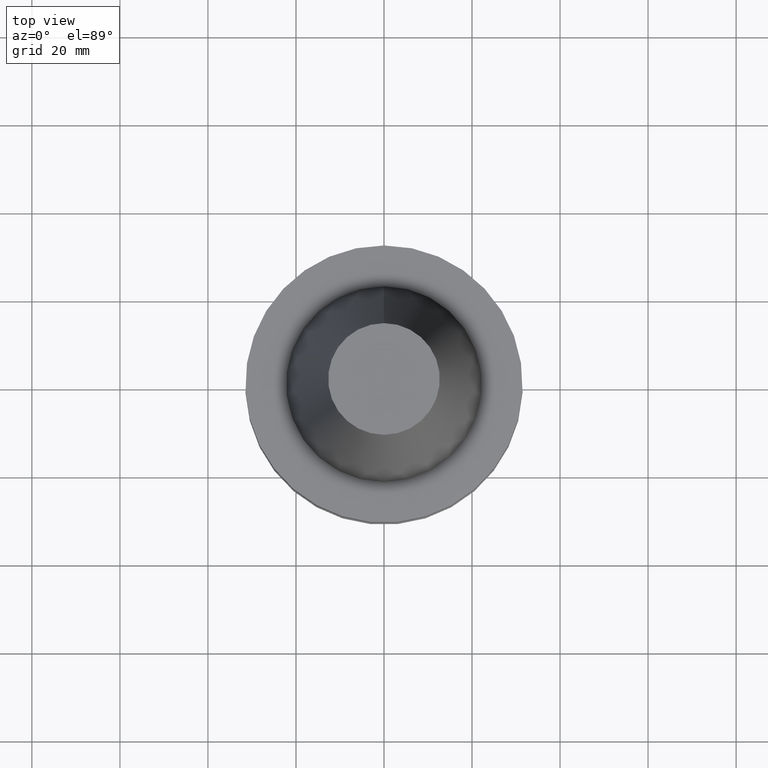
[diagram: clean part render]
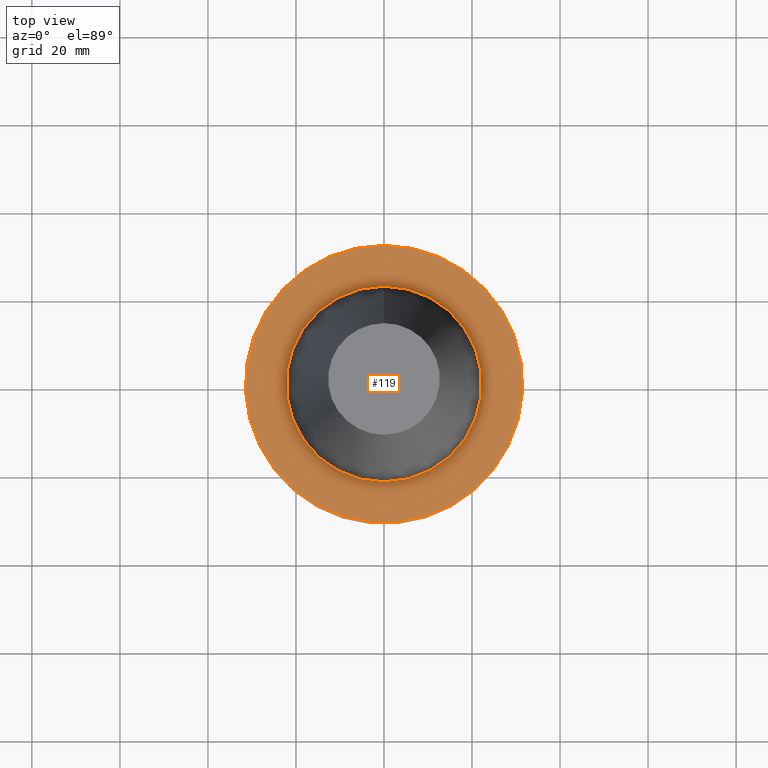
[diagram: same view with one face highlighted and labeled with its STEP entity id]
A machine part, top view. The second image highlights one B-rep face of the part: STEP entity #119.
In plain terms, the highlighted planar face has unit normal (-0, -0, 1).
Its self-contained STEP definition (entity closure, byte-faithful):
#75=EDGE_CURVE('Unnamed[1]',#176,#176,#177,.T.);
#79=EDGE_CURVE('Unnamed[1]',#182,#182,#183,.T.);
#119=ADVANCED_FACE('Unnamed[1]',(#242,#243),#244,.T.);
#176=VERTEX_POINT('',#302);
#177=CIRCLE('',#303,31.4999999999996);
#182=VERTEX_POINT('',#310);
#183=CIRCLE('',#311,22.225);
#242=FACE_OUTER_BOUND('',#384,.T.);
#243=FACE_BOUND('',#385,.T.);
#244=PLANE('',#386);
#302=CARTESIAN_POINT('',(6.12323399573568E-017,31.4999999999997,-0.999999999999825));
#303=AXIS2_PLACEMENT_3D('',#434,#435,#436);
#310=CARTESIAN_POINT('',(6.12323399573604E-017,22.2250000000001,-0.999999999999884));
#311=AXIS2_PLACEMENT_3D('',#440,#441,#442);
#384=EDGE_LOOP('',(#506));
#385=EDGE_LOOP('',(#507));
#386=AXIS2_PLACEMENT_3D('',#508,#509,#510);
#434=CARTESIAN_POINT('',(6.12323399573563E-017,4.53302750006958E-014,-0.999999999999815));
#435=DIRECTION('',(6.12323399573677E-017,-4.72374929569225E-016,-1.0));
#436=DIRECTION('',(2.40974695439514E-032,1.0,-4.72374929569225E-016));
#440=CARTESIAN_POINT('',(6.12323399573598E-017,4.53302750006958E-014,-0.999999999999872));
#441=DIRECTION('',(6.12323399573677E-017,-4.72374929569225E-016,-1.0));
#442=DIRECTION('',(2.40974695439514E-032,1.0,-4.72374929569225E-016));
#506=ORIENTED_EDGE('',*,*,#75,.F.);
#507=ORIENTED_EDGE('',*,*,#79,.T.);
#508=CARTESIAN_POINT('',(6.12323399573586E-017,26.8624999999999,-0.999999999999855));
#509=DIRECTION('',(-6.12323399573677E-017,-6.28704535573121E-015,1.0));
#510=DIRECTION('',(3.89797651280292E-031,-1.0,-6.28704535573121E-015));